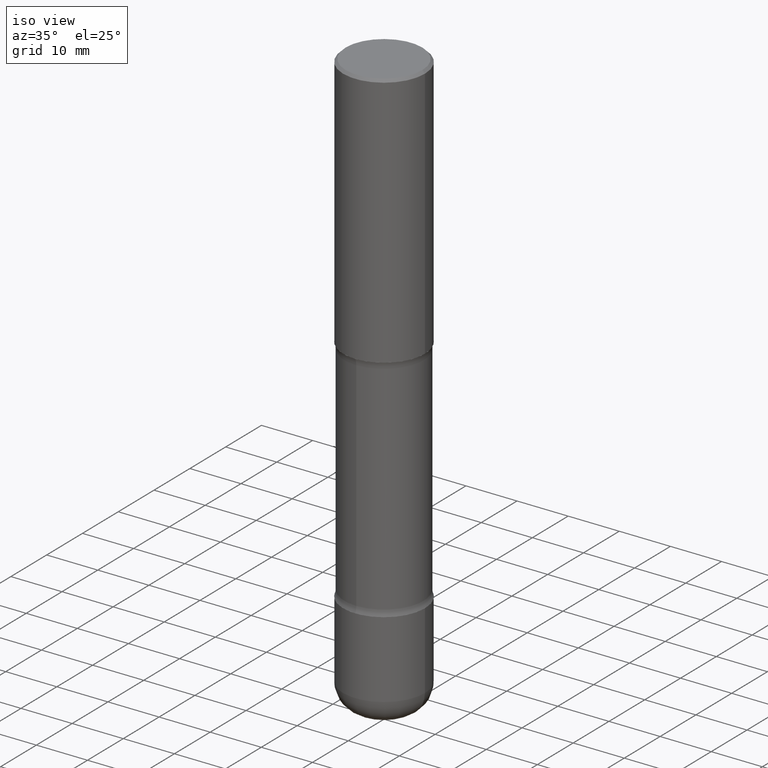
[diagram: clean part render]
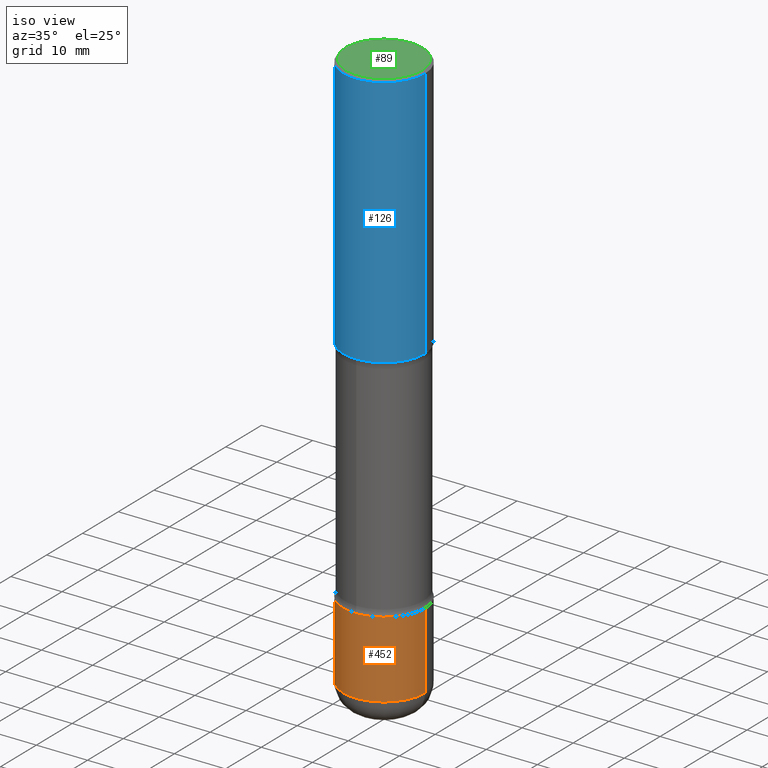
[diagram: same view with three faces highlighted in distinct colors, each labeled with its STEP entity id]
A machine part, iso view with three faces highlighted in distinct colors.
Their STEP definitions:

[orange] entity #452 — the highlighted cylindrical surface (partial cylindrical patch) has radius 7.9997 mm, axis along (-0, 0, 1).
#11 = CARTESIAN_POINT ( 'NONE',  ( 0.3149500000000002298, -1.525812259887842581E-14, -3.740200000000000191 ) ) ;
#14 = AXIS2_PLACEMENT_3D ( 'NONE', #411, #210, #17 ) ;
#15 = ORIENTED_EDGE ( 'NONE', *, *, #514, .F. ) ;
#17 = DIRECTION ( 'NONE',  ( 1.000000000000000000, -6.982962677686264344E-15, 0.000000000000000000 ) ) ;
#26 = DIRECTION ( 'NONE',  ( -2.445468806185136877E-29, 3.491481338843145188E-15, 1.000000000000000000 ) ) ;
#27 = DIRECTION ( 'NONE',  ( -2.445468806185136597E-29, 3.491481338843145583E-15, 1.000000000000000000 ) ) ;
#35 = FACE_OUTER_BOUND ( 'NONE', #183, .T. ) ;
#39 = VERTEX_POINT ( 'NONE', #291 ) ;
#43 = ORIENTED_EDGE ( 'NONE', *, *, #249, .T. ) ;
#47 = ORIENTED_EDGE ( 'NONE', *, *, #227, .F. ) ;
#55 = EDGE_CURVE ( 'NONE', #39, #133, #426, .T. ) ;
#78 = CYLINDRICAL_SURFACE ( 'NONE', #488, 0.3149500000000002853 ) ;
#119 = DIRECTION ( 'NONE',  ( 1.000000000000000000, -6.982962677686267499E-15, 4.876176775795936353E-29 ) ) ;
#133 = VERTEX_POINT ( 'NONE', #11 ) ;
#183 = EDGE_LOOP ( 'NONE', ( #15, #43, #245, #47 ) ) ;
#185 = VECTOR ( 'NONE', #516, 39.37007874015748143 ) ;
#186 = VECTOR ( 'NONE', #26, 39.37007874015748143 ) ;
#210 = DIRECTION ( 'NONE',  ( -2.445468806185136597E-29, 3.491481338843145583E-15, 1.000000000000000000 ) ) ;
#227 = EDGE_CURVE ( 'NONE', #278, #133, #394, .T. ) ;
#229 = CARTESIAN_POINT ( 'NONE',  ( -0.3149500000000002298, -1.185184402255813608E-14, -3.740200000000000191 ) ) ;
#245 = ORIENTED_EDGE ( 'NONE', *, *, #55, .T. ) ;
#249 = EDGE_CURVE ( 'NONE', #347, #39, #269, .T. ) ;
#269 = CIRCLE ( 'NONE', #384, 0.3149500000000002853 ) ;
#278 = VERTEX_POINT ( 'NONE', #229 ) ;
#279 = DIRECTION ( 'NONE',  ( -2.445468806185136597E-29, 3.491481338843145583E-15, 1.000000000000000000 ) ) ;
#289 = CARTESIAN_POINT ( 'NONE',  ( -0.3149500000000002853, 2.237854346276437562E-15, -1.549218606675783797E-29 ) ) ;
#291 = CARTESIAN_POINT ( 'NONE',  ( 0.3149500000000003408, -1.731984232946530120E-14, -4.330700000000000216 ) ) ;
#324 = CARTESIAN_POINT ( 'NONE',  ( -0.3149500000000003408, -1.288270388785157219E-14, -4.330700000000000216 ) ) ;
#347 = VERTEX_POINT ( 'NONE', #324 ) ;
#367 = DIRECTION ( 'NONE',  ( 1.000000000000000000, -6.982962677686263555E-15, 0.000000000000000000 ) ) ;
#384 = AXIS2_PLACEMENT_3D ( 'NONE', #529, #279, #367 ) ;
#394 = CIRCLE ( 'NONE', #14, 0.3149500000000002298 ) ;
#411 = CARTESIAN_POINT ( 'NONE',  ( 9.146542428893648262E-29, -1.305883850354113437E-14, -3.740200000000000191 ) ) ;
#426 = LINE ( 'NONE', #551, #185 ) ;
#452 = ADVANCED_FACE ( 'NONE', ( #35 ), #78, .T. ) ;
#488 = AXIS2_PLACEMENT_3D ( 'NONE', #510, #27, #119 ) ;
#510 = CARTESIAN_POINT ( 'NONE',  ( 0.000000000000000000, 0.000000000000000000, 0.000000000000000000 ) ) ;
#514 = EDGE_CURVE ( 'NONE', #347, #278, #552, .T. ) ;
#516 = DIRECTION ( 'NONE',  ( -2.445468806185136877E-29, 3.491481338843145188E-15, 1.000000000000000000 ) ) ;
#529 = CARTESIAN_POINT ( 'NONE',  ( 1.059059175894597327E-28, -1.512055823412801291E-14, -4.330700000000000216 ) ) ;
#551 = CARTESIAN_POINT ( 'NONE',  ( 0.3149500000000002853, -2.199284095337291843E-15, 1.535751875536931531E-29 ) ) ;
#552 = LINE ( 'NONE', #289, #186 ) ;

[blue] entity #126 — the highlighted cylindrical surface (partial cylindrical patch) has radius 7.9997 mm, axis along (-0, 0, 1).
#46 = DIRECTION ( 'NONE',  ( -2.445468806185136597E-29, 3.491481338843145583E-15, 1.000000000000000000 ) ) ;
#48 = ORIENTED_EDGE ( 'NONE', *, *, #242, .T. ) ;
#52 = CIRCLE ( 'NONE', #368, 0.3149500000000001743 ) ;
#59 = EDGE_CURVE ( 'NONE', #221, #218, #52, .T. ) ;
#80 = EDGE_CURVE ( 'NONE', #221, #97, #164, .T. ) ;
#96 = EDGE_LOOP ( 'NONE', ( #180, #112, #48, #224 ) ) ;
#97 = VERTEX_POINT ( 'NONE', #509 ) ;
#112 = ORIENTED_EDGE ( 'NONE', *, *, #59, .T. ) ;
#113 = CARTESIAN_POINT ( 'NONE',  ( 0.3149499999999998967, -2.230543471175006266E-15, -0.02000000000000006981 ) ) ;
#126 = ADVANCED_FACE ( 'NONE', ( #132 ), #408, .T. ) ;
#132 = FACE_OUTER_BOUND ( 'NONE', #96, .T. ) ;
#144 = LINE ( 'NONE', #328, #512 ) ;
#162 = CARTESIAN_POINT ( 'NONE',  ( 4.813905344975441835E-29, -6.872981015512731707E-15, -1.968500000000000139 ) ) ;
#164 = LINE ( 'NONE', #460, #415 ) ;
#180 = ORIENTED_EDGE ( 'NONE', *, *, #80, .F. ) ;
#181 = CARTESIAN_POINT ( 'NONE',  ( 4.890937612370289799E-31, -6.982962677686315028E-17, -0.02000000000000006981 ) ) ;
#187 = EDGE_CURVE ( 'NONE', #97, #321, #558, .T. ) ;
#209 = CARTESIAN_POINT ( 'NONE',  ( 0.3149500000000001743, -9.072265110850023156E-15, -1.968500000000000139 ) ) ;
#218 = VERTEX_POINT ( 'NONE', #209 ) ;
#221 = VERTEX_POINT ( 'NONE', #259 ) ;
#224 = ORIENTED_EDGE ( 'NONE', *, *, #187, .F. ) ;
#231 = DIRECTION ( 'NONE',  ( -2.445468806185136597E-29, 3.491481338843145583E-15, 1.000000000000000000 ) ) ;
#237 = AXIS2_PLACEMENT_3D ( 'NONE', #277, #231, #491 ) ;
#241 = DIRECTION ( 'NONE',  ( -2.445468806185136877E-29, 3.491481338843145188E-15, 1.000000000000000000 ) ) ;
#242 = EDGE_CURVE ( 'NONE', #218, #321, #144, .T. ) ;
#259 = CARTESIAN_POINT ( 'NONE',  ( -0.3149500000000001743, -1.233550974868359743E-15, -1.968500000000000139 ) ) ;
#277 = CARTESIAN_POINT ( 'NONE',  ( 0.000000000000000000, 0.000000000000000000, 0.000000000000000000 ) ) ;
#288 = DIRECTION ( 'NONE',  ( -2.445468806185136877E-29, 3.491481338843145188E-15, 1.000000000000000000 ) ) ;
#316 = DIRECTION ( 'NONE',  ( 1.000000000000000000, -6.982962677686265922E-15, 0.000000000000000000 ) ) ;
#321 = VERTEX_POINT ( 'NONE', #113 ) ;
#328 = CARTESIAN_POINT ( 'NONE',  ( 0.3149500000000000077, -2.199284095337289871E-15, 1.535751875536930130E-29 ) ) ;
#344 = DIRECTION ( 'NONE',  ( 1.000000000000000000, -6.982962677686269866E-15, 0.000000000000000000 ) ) ;
#361 = DIRECTION ( 'NONE',  ( -2.445468806185136597E-29, 3.491481338843145583E-15, 1.000000000000000000 ) ) ;
#368 = AXIS2_PLACEMENT_3D ( 'NONE', #162, #46, #344 ) ;
#408 = CYLINDRICAL_SURFACE ( 'NONE', #237, 0.3149500000000000077 ) ;
#415 = VECTOR ( 'NONE', #288, 39.37007874015748143 ) ;
#435 = AXIS2_PLACEMENT_3D ( 'NONE', #181, #361, #316 ) ;
#460 = CARTESIAN_POINT ( 'NONE',  ( -0.3149500000000000077, 2.237854346276435590E-15, -1.549218606675782676E-29 ) ) ;
#491 = DIRECTION ( 'NONE',  ( 1.000000000000000000, -6.982962677686266711E-15, 4.876176775795936353E-29 ) ) ;
#509 = CARTESIAN_POINT ( 'NONE',  ( -0.3149499999999998967, 2.129454468560425784E-15, -0.02000000000000006981 ) ) ;
#512 = VECTOR ( 'NONE', #241, 39.37007874015748143 ) ;
#558 = CIRCLE ( 'NONE', #435, 0.3149499999999998967 ) ;

[green] entity #89 — the highlighted planar face has unit normal (0, -0, -1).
#32 = DIRECTION ( 'NONE',  ( 2.438088387897960049E-29, -3.491481338843145188E-15, -1.000000000000000000 ) ) ;
#89 = ADVANCED_FACE ( 'NONE', ( #544 ), #467, .F. ) ;
#98 = CARTESIAN_POINT ( 'NONE',  ( -0.2949499999999998789, 2.094539655171994924E-15, 1.280553747028672311E-17 ) ) ;
#159 = DIRECTION ( 'NONE',  ( -2.445468806185136597E-29, 3.491481338843145583E-15, 1.000000000000000000 ) ) ;
#169 = EDGE_CURVE ( 'NONE', #309, #190, #541, .T. ) ;
#190 = VERTEX_POINT ( 'NONE', #98 ) ;
#230 = AXIS2_PLACEMENT_3D ( 'NONE', #502, #32, #341 ) ;
#309 = VERTEX_POINT ( 'NONE', #331 ) ;
#322 = AXIS2_PLACEMENT_3D ( 'NONE', #453, #485, #365 ) ;
#331 = CARTESIAN_POINT ( 'NONE',  ( 0.2949499999999998789, -2.127023677808859286E-15, 1.280553747031588939E-17 ) ) ;
#341 = DIRECTION ( 'NONE',  ( -1.000000000000000000, 6.982962677686265922E-15, -4.876176775795935793E-29 ) ) ;
#365 = DIRECTION ( 'NONE',  ( 1.000000000000000000, -6.982962677686267499E-15, 4.876053491004736589E-29 ) ) ;
#366 = ORIENTED_EDGE ( 'NONE', *, *, #466, .T. ) ;
#391 = ORIENTED_EDGE ( 'NONE', *, *, #169, .T. ) ;
#406 = AXIS2_PLACEMENT_3D ( 'NONE', #461, #159, #428 ) ;
#428 = DIRECTION ( 'NONE',  ( 1.000000000000000000, -6.982962677686267499E-15, 4.876053491004736589E-29 ) ) ;
#446 = CIRCLE ( 'NONE', #406, 0.2949499999999998789 ) ;
#453 = CARTESIAN_POINT ( 'NONE',  ( -3.131554243005663153E-46, 4.471029511141347348E-32, 1.280553747030124924E-17 ) ) ;
#461 = CARTESIAN_POINT ( 'NONE',  ( -3.131554243005663153E-46, 4.471029511141347348E-32, 1.280553747030124924E-17 ) ) ;
#466 = EDGE_CURVE ( 'NONE', #190, #309, #446, .T. ) ;
#467 = PLANE ( 'NONE',  #230 ) ;
#482 = EDGE_LOOP ( 'NONE', ( #366, #391 ) ) ;
#485 = DIRECTION ( 'NONE',  ( -2.445468806185136597E-29, 3.491481338843145583E-15, 1.000000000000000000 ) ) ;
#502 = CARTESIAN_POINT ( 'NONE',  ( 2.059624841783563274E-15, 0.2949499999999998789, -1.023409652156634744E-15 ) ) ;
#541 = CIRCLE ( 'NONE', #322, 0.2949499999999998789 ) ;
#544 = FACE_OUTER_BOUND ( 'NONE', #482, .T. ) ;